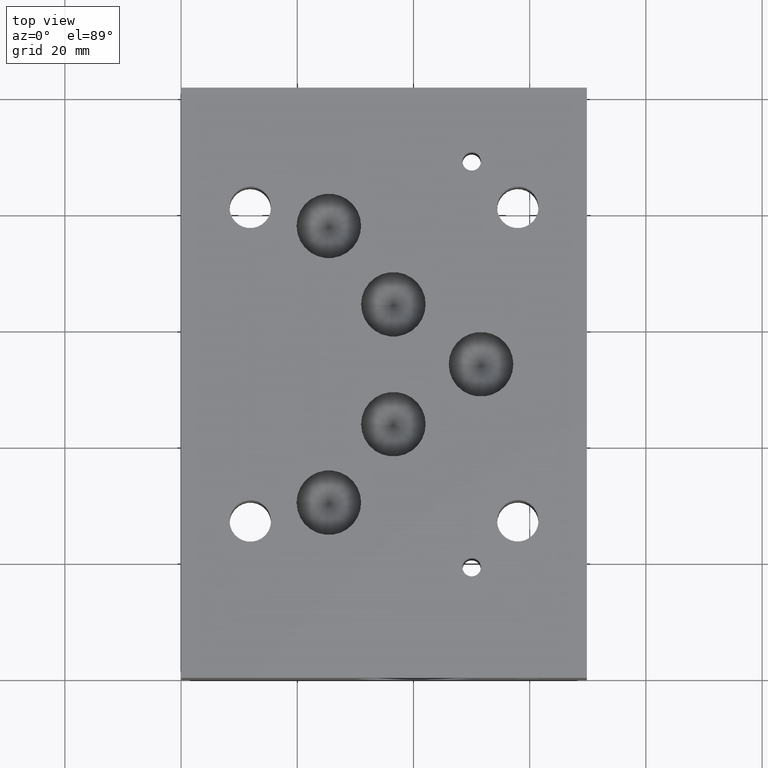
[diagram: clean part render]
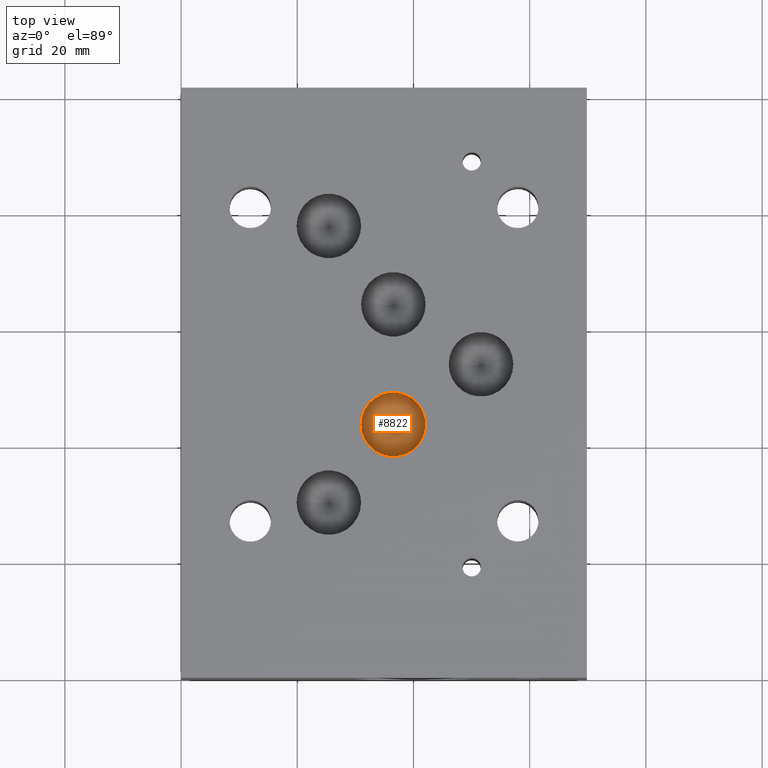
[diagram: same view with one face highlighted and labeled with its STEP entity id]
A machine part, top view. The second image highlights one B-rep face of the part: STEP entity #8822.
In plain terms, the highlighted conical surface has half-angle 60 deg.
Its self-contained STEP definition (entity closure, byte-faithful):
#64=CONICAL_SURFACE('',#9271,2.778125,1.0471975511966);
#137=CIRCLE('',#9272,5.55625);
#971=FACE_OUTER_BOUND('',#1490,.T.);
#1490=EDGE_LOOP('',(#7849,#7850,#7851));
#2427=LINE('',#14796,#3349);
#3349=VECTOR('',#11047,2.778125);
#4331=VERTEX_POINT('',#14793);
#4332=VERTEX_POINT('',#14795);
#5515=EDGE_CURVE('',#4331,#4331,#137,.T.);
#5516=EDGE_CURVE('',#4331,#4332,#2427,.T.);
#7849=ORIENTED_EDGE('',*,*,#5515,.T.);
#7850=ORIENTED_EDGE('',*,*,#5516,.T.);
#7851=ORIENTED_EDGE('',*,*,#5516,.F.);
#8822=ADVANCED_FACE('',(#971),#64,.F.);
#9271=AXIS2_PLACEMENT_3D('',#14792,#11043,#11044);
#9272=AXIS2_PLACEMENT_3D('',#14794,#11045,#11046);
#11043=DIRECTION('center_axis',(0.,0.,1.));
#11044=DIRECTION('ref_axis',(1.,0.,0.));
#11045=DIRECTION('center_axis',(0.,0.,1.));
#11046=DIRECTION('ref_axis',(1.,0.,0.));
#11047=DIRECTION('',(0.866025403784439,1.06057523872491E-16,-0.5));
#14792=CARTESIAN_POINT('Origin',(36.53028,43.64482,20.5881487834076));
#14793=CARTESIAN_POINT('',(30.97403,43.64482,22.1921));
#14794=CARTESIAN_POINT('Origin',(36.53028,43.64482,22.1921));
#14795=CARTESIAN_POINT('',(36.53028,43.64482,18.9841975668151));
#14796=CARTESIAN_POINT('',(33.752155,43.64482,20.5881487834076));